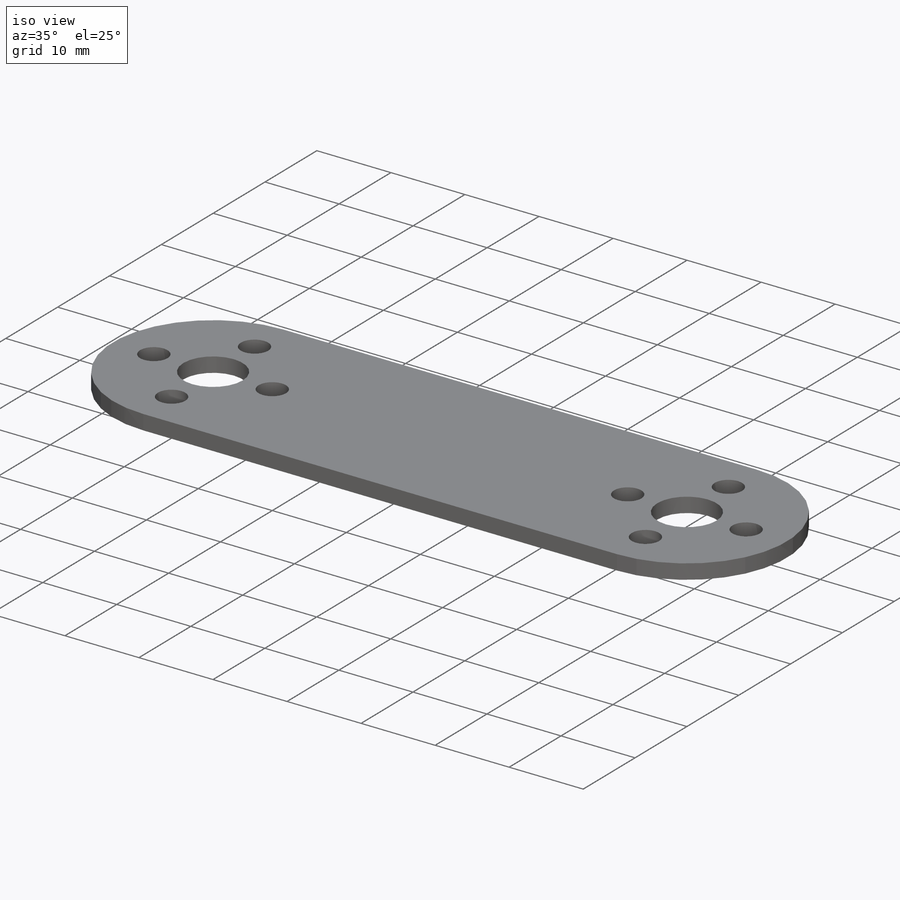
[diagram: iso view]
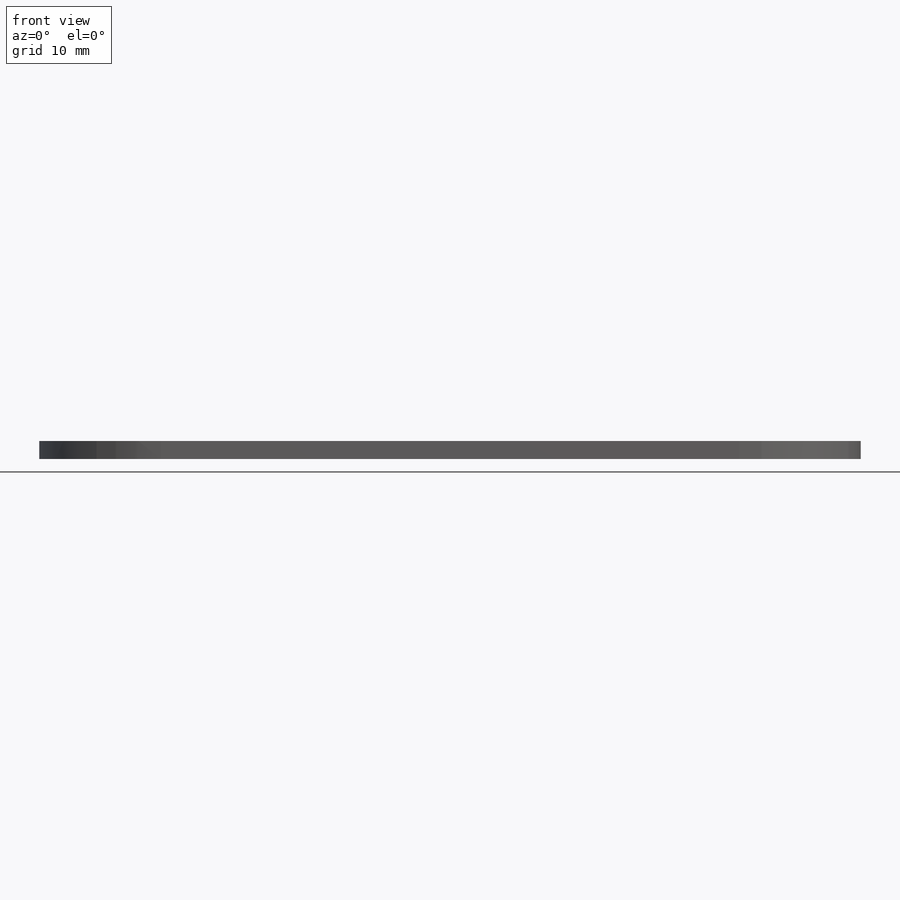
[diagram: front view]
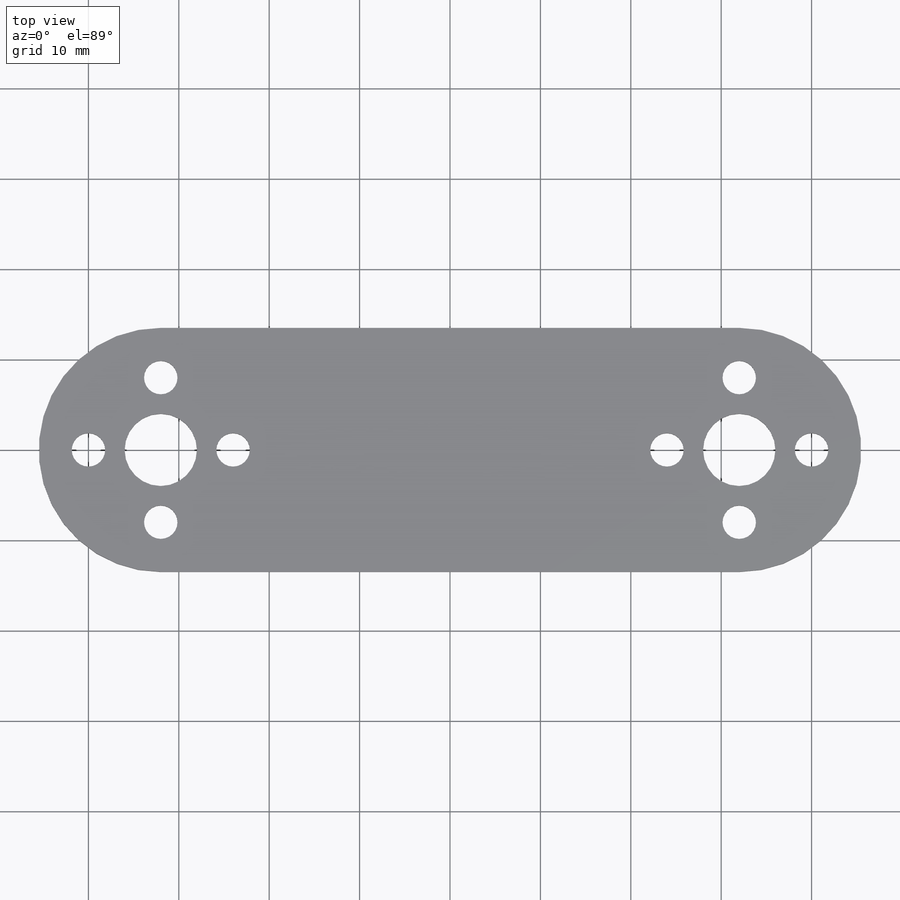
[diagram: top view]
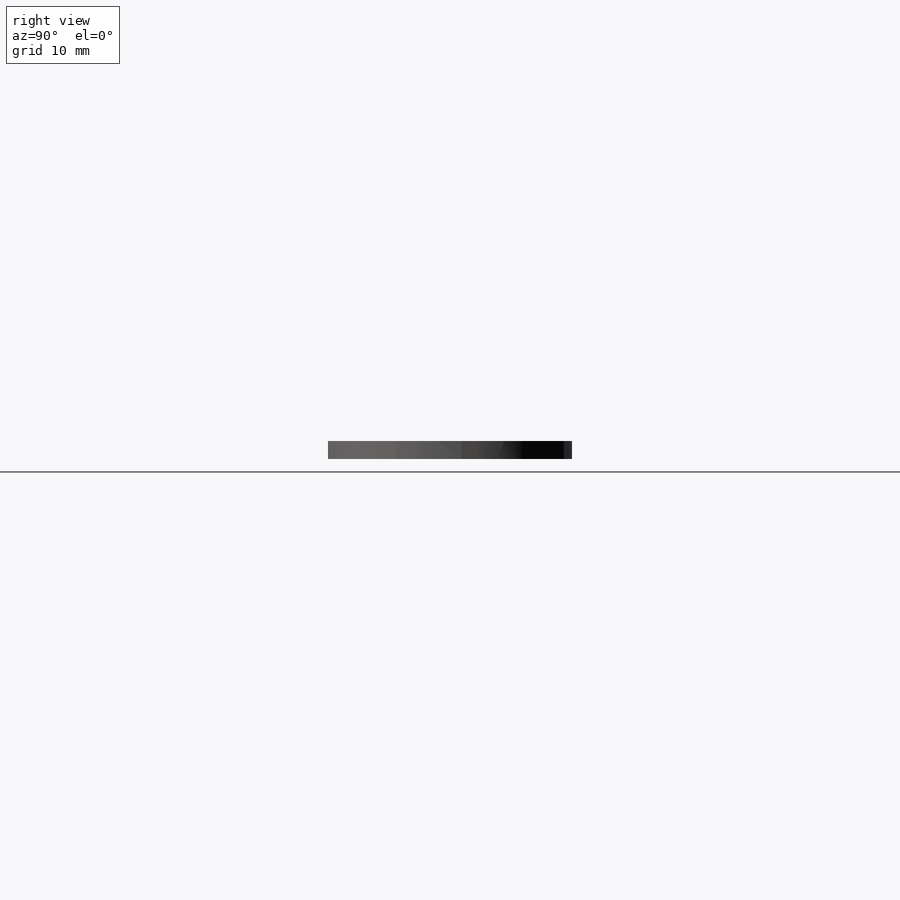
[diagram: right view]
SOLIDWORKS PART (.sldprt)
format: sldprt  version: not decoded by parser v0  size: 234,496 bytes
history: native  units: mm
features: sketch x2, fillet x2, material x1, extrude x1, cut_extrude x1, pattern_circular x1, mirror x1 (+13 scaffold rows collapsed)
feature tree (22):
  scaffold x13  (default folders/planes/origin — collapsed)
  material  "5052 Alloy"
  sketch  "Sketch1"  dims[D1=91.0mm D2=27.0mm]
  extrude  "Extrude1"  Depth=2mm
  fillet  "Fillet1"  [1 undecoded]
  fillet  "Fillet3"  [1 undecoded]
  sketch  "Sketch2"  dims[c1.D1=3.7mm c1.D2=8.0mm c1.D3=16.0mm c2.D1=32.0mm c2.D2=13.5mm c2.D3=32.0mm c2.D4=64.0mm]
  cut_extrude  "Cut-Extrude1"  Depth=2mm
  pattern_circular  "CirPattern1"  Count=4 Angle=90deg
  mirror  "Mirror2"
decode coverage: 5 of 8 modeling features carry decoded parameters
note: 2 parameter values undecoded
note: suppression state not decoded; provenance and decode notes live in map.json
